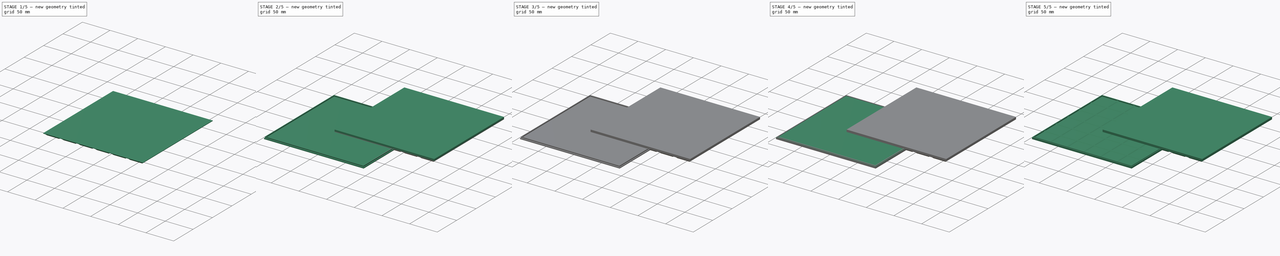
[diagram: build sequence overview — one tinted view per stage of 5, left to right]
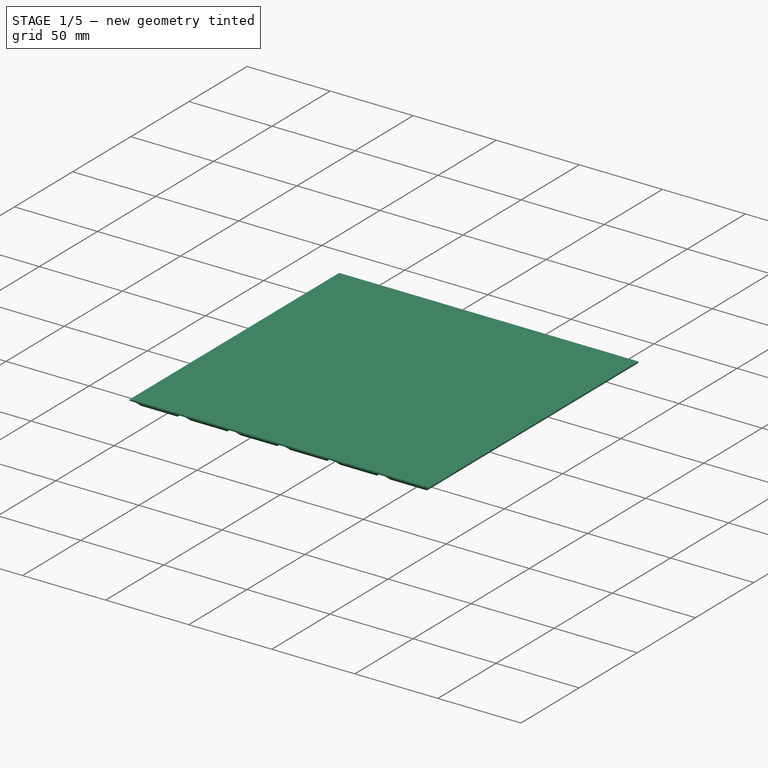
[diagram: stage 1 of 5 — iso view after this stage's code; geometry added in this stage tinted green]
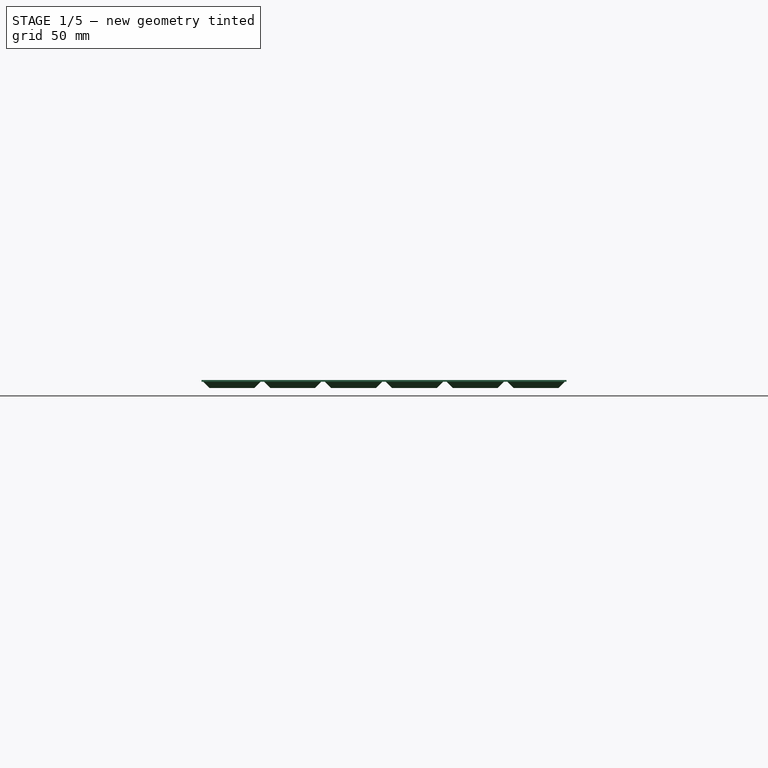
[diagram: stage 1 of 5 — front view after this stage's code; geometry added in this stage tinted green]
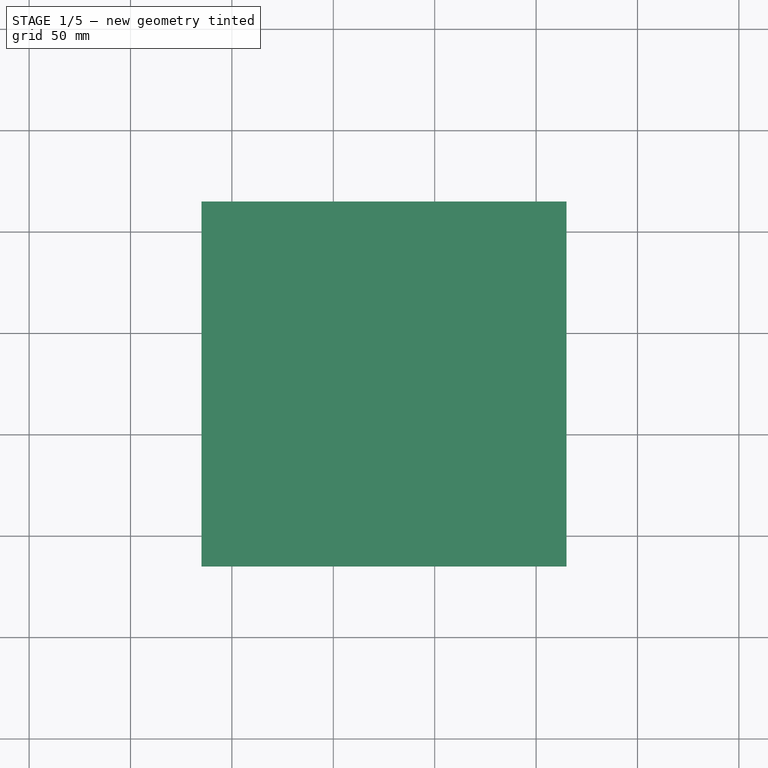
[diagram: stage 1 of 5 — top view after this stage's code; geometry added in this stage tinted green]
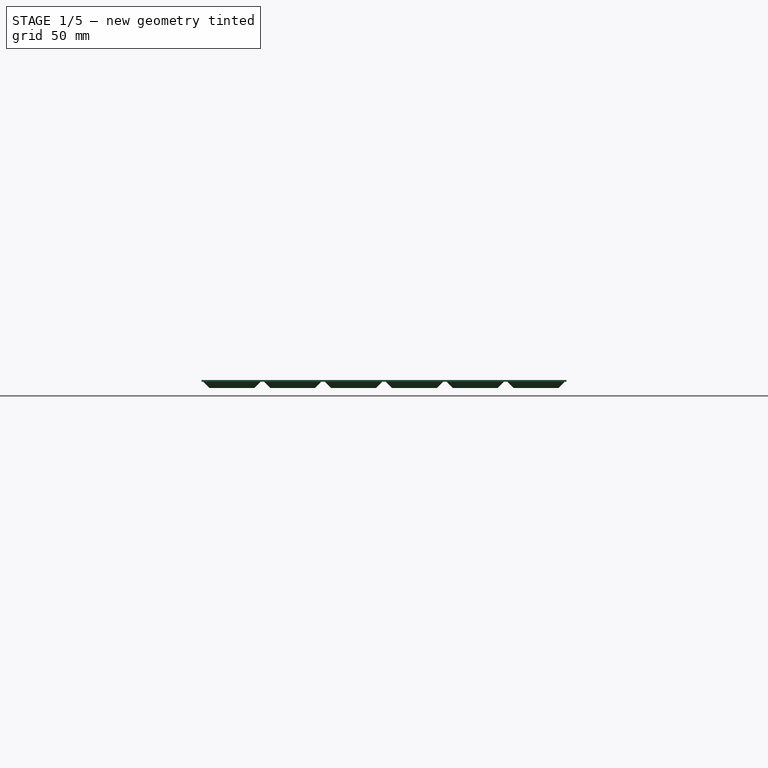
[diagram: stage 1 of 5 — right view after this stage's code; geometry added in this stage tinted green]
FCSTD DOCUMENT  (FreeCAD 0.19R24366 (Git))
Label: retaining base
License: All rights reserved
LicenseURL: http://en.wikipedia.org/wiki/All_rights_reserved
objects: Sketcher::SketchObject×13, PartDesign::Pad×9, PartDesign::Plane×7, PartDesign::LinearPattern×6, PartDesign::Chamfer×6, PartDesign::Pocket×4, PartDesign::Body×4, PartDesign::MultiTransform×3, Spreadsheet::Sheet×1
note: 71 computed .brp shape members not serialized (recipe doc carries the construction recipe); baked Part::Feature solids carry a one-line shape summary decoded from their .brp

FEATURE [PartDesign::Body] Body002  label="Hollow_Box_Top"
  Group = -> [Sketch009,Pad004,DatumPlane006,Sketch010,Pad005,DatumPlane007,Sketch011,Pocket003,Chamfer004]
  Origin = -> Origin002
  Tip = -> Chamfer004
FEATURE [PartDesign::Plane] DatumPlane008  label="Apex_Fill_DatumPlane001"
  AttachmentOffset = pos=(0,0,3.1) rot=(0,0,1;0rad)
  Length = 228
  MapMode = 5
  Placement = pos=(0,0,3.1) rot=(0,0,1;0rad)
  ResizeMode = 0
  Support = -> [XY_Plane003]
  Width = 228
  expr: .AttachmentOffset.Base.z = <<Params>>.BoundaryHeight - <<Params>>.BoundaryNotchDepth + <<Params>>.ApexFillTolerance
FEATURE [Sketcher::SketchObject] Sketch012  label="Apex_FillSketch001"
  FullyConstrained = true
  MapMode = 5
  Placement = pos=(0,0,3.1) rot=(0,0,1;0rad)
  Support = -> [DatumPlane008]
  expr: Constraints[9] = <<Params>>.CellSize
  expr: Constraints[8] = <<Params>>.CellSize
  expr: Constraints[11] = -<<Params>>.CellSize / 2
  expr: Constraints[10] = -<<Params>>.CellSize / 2
  sketch-geometry (4):
    g0: LineSegment StartX=-15 StartY=15 StartZ=0 EndX=15 EndY=15 EndZ=0
    g1: LineSegment StartX=15 StartY=15 StartZ=0 EndX=15 EndY=-15 EndZ=0
    g2: LineSegment StartX=15 StartY=-15 StartZ=0 EndX=-15 EndY=-15 EndZ=0
    g3: LineSegment StartX=-15 StartY=-15 StartZ=0 EndX=-15 EndY=15 EndZ=0
  constraints (12):
    c: Coincident(g0,g1)
    c: Coincident(g1,g2)
    c: Coincident(g2,g3)
    c: Coincident(g3,g0)
    c: Horizontal(g0)
    c: Horizontal(g2)
    c: Vertical(g1)
    c: Vertical(g3)
    c: DistanceY(g3,g3) = 30
    c: DistanceX(g0,g0) = 30
    c: DistanceX(g2) = -15
    c: DistanceY(g2) = -15
FEATURE [Sketcher::SketchObject] Sketch014  label="Box_Walls_Pad_Sketch001"
  FullyConstrained = true
  MapMode = 5
  Placement = pos=(0,0,4) rot=(0,0,1;0rad)
  expr: Constraints[11] = <<Params>>.CellSize * <<Params>>.XRepeats
  expr: Constraints[10] = <<Params>>.CellSize * <<Params>>.YRepeats
  expr: Constraints[9] = -<<Params>>.CellSize / 2
  expr: Constraints[8] = -<<Params>>.CellSize / 2
  sketch-geometry (4):
    g0: LineSegment StartX=-15 StartY=165 StartZ=0 EndX=165 EndY=165 EndZ=0
    g1: LineSegment StartX=165 StartY=165 StartZ=0 EndX=165 EndY=-15 EndZ=0
    g2: LineSegment StartX=165 StartY=-15 StartZ=0 EndX=-15 EndY=-15 EndZ=0
    g3: LineSegment StartX=-15 StartY=-15 StartZ=0 EndX=-15 EndY=165 EndZ=0
  constraints (12):
    c: Coincident(g0,g1)
    c: Coincident(g1,g2)
    c: Coincident(g2,g3)
    c: Coincident(g3,g0)
    c: Horizontal(g0)
    c: Horizontal(g2)
    c: Vertical(g1)
    c: Vertical(g3)
    c: DistanceX(g2) = -15
    c: DistanceY(g2) = -15
    c: DistanceY(g3,g3) = 180
    c: DistanceX(g2,g2) = 180
FEATURE [Sketcher::SketchObject] Sketch016  label="GridSketch001"
  FullyConstrained = true
  MapMode = 5
  Support = -> [XY_Plane003]
  expr: Constraints[9] = <<Params>>.CellSize
  expr: Constraints[10] = <<Params>>.CellSize
  sketch-geometry (4):
    g0: LineSegment StartX=-15 StartY=15 StartZ=0 EndX=15 EndY=15 EndZ=0
    g1: LineSegment StartX=15 StartY=15 StartZ=0 EndX=15 EndY=-15 EndZ=0
    g2: LineSegment StartX=15 StartY=-15 StartZ=0 EndX=-15 EndY=-15 EndZ=0
    g3: LineSegment StartX=-15 StartY=-15 StartZ=0 EndX=-15 EndY=15 EndZ=0
  constraints (11):
    c: Coincident(g0,g1)
    c: Coincident(g1,g2)
    c: Coincident(g2,g3)
    c: Coincident(g3,g0)
    c: Horizontal(g0)
    c: Horizontal(g2)
    c: Vertical(g1)
    c: Vertical(g3)
    c: Symmetric(g0,g2,g-1)
    c: DistanceY(g1,g1) = 30
    c: DistanceX(g0,g0) = 30
FEATURE [PartDesign::LinearPattern] LinearPattern004  label="X_Pattern002"
  Direction = -> Sketch016 [H_Axis]
  Length = 150
  Occurrences = 6
  expr: Occurrences = <<Params>>.XRepeats
  expr: Length = <<Params>>.CellSize * (<<Params>>.XRepeats - 1) == 0 ? 1 : <<Params>>.CellSize * (<<Params>>.XRepeats - 1)
FEATURE [PartDesign::LinearPattern] LinearPattern005  label="Y_Pattern002"
  Direction = -> Sketch016 [V_Axis]
  Length = 150
  Occurrences = 6
  expr: Occurrences = <<Params>>.YRepeats
  expr: Length = <<Params>>.CellSize * (<<Params>>.YRepeats - 1) == 0 ? 1 : <<Params>>.CellSize * (<<Params>>.YRepeats - 1)
FEATURE [PartDesign::Pad] Pad008  label="Cell_Grid001"
  Direction = (1,1,1)
  Length = 4
  Length2 = 100
  Profile = -> Sketch016
  Type = 0
  expr: Length = <<Params>>.BoundaryHeight
FEATURE [PartDesign::Chamfer] Chamfer006  label="Grid_Chamfer001"
  Angle = 45
  Base = -> Pad008 [Edge11,Edge9,Edge6,Edge3]
  BaseFeature = -> Pad008
  ChamferType = 0
  FlipDirection = false
  Size = 3.99
  Size2 = 1
  SupportTransform = false
  expr: Size = <<Params>>.BoundaryHeight - 0.01
FEATURE [PartDesign::Pad] Pad006  label="Apex_Fill001"
  BaseFeature = -> Chamfer006
  Direction = (1,1,1)
  Length = 0.9
  Length2 = 100
  Profile = -> Sketch012
  Type = 0
  expr: Length = <<Params>>.BoundaryNotchDepth - <<Params>>.ApexFillTolerance
FEATURE [PartDesign::MultiTransform] MultiTransform002  label="Grid_MultiTransform001"
  BaseFeature = -> Pad006
  Originals = -> [Pad008,Chamfer006,Pad006]
  Transformations = -> [LinearPattern004,LinearPattern005]
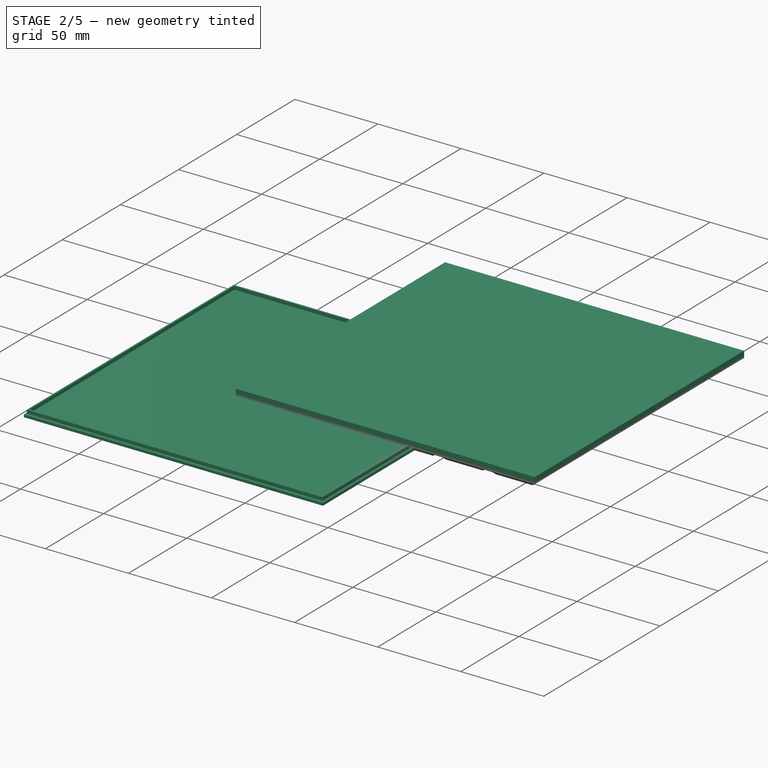
[diagram: stage 2 of 5 — iso view after this stage's code; geometry added in this stage tinted green]
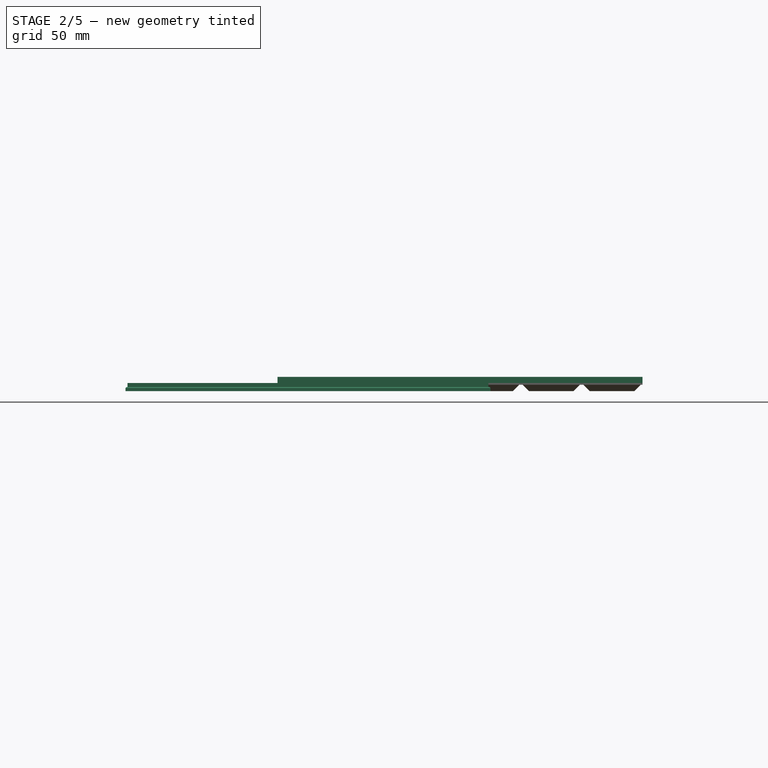
[diagram: stage 2 of 5 — front view after this stage's code; geometry added in this stage tinted green]
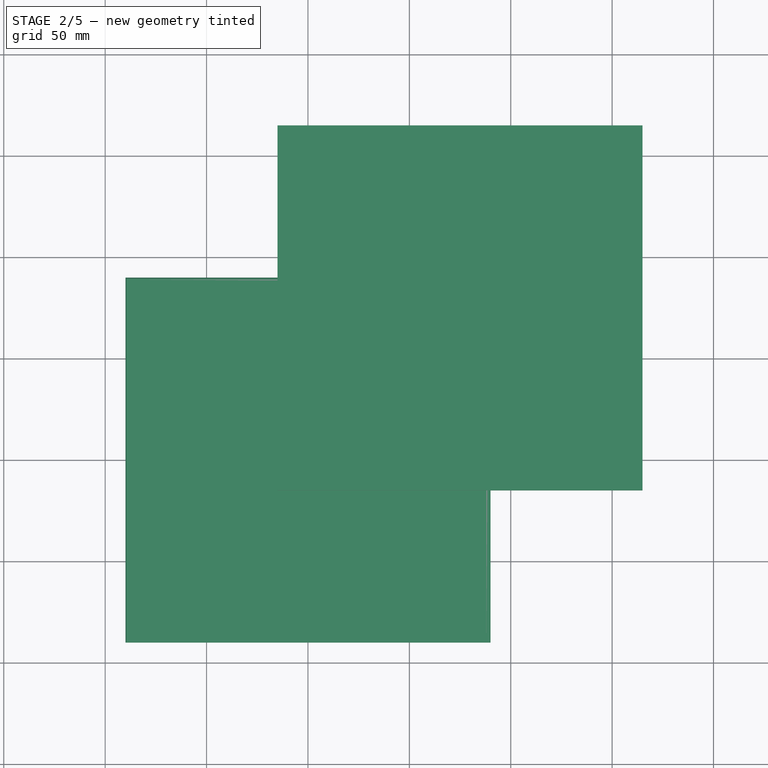
[diagram: stage 2 of 5 — top view after this stage's code; geometry added in this stage tinted green]
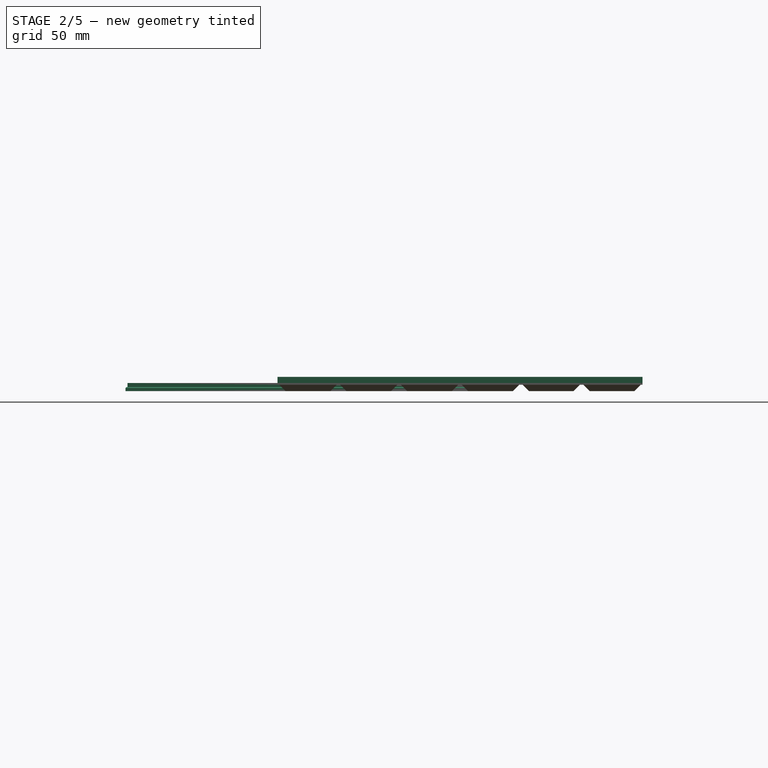
[diagram: stage 2 of 5 — right view after this stage's code; geometry added in this stage tinted green]
FEATURE [PartDesign::Body] Body001  label="Hollow_Box"
  Group = -> [Sketch002,Pad001,Chamfer002,DatumPlane003,Pad002,DatumPlane004,Pocket001,Chamfer003,MultiTransform001,Sketch005,LinearPattern002,LinearPattern003,Sketch006,Sketch007,Pad003,DatumPlane005,Sketch008,Pocket002]
  Origin = -> Origin001
  Tip = -> Pocket002
FEATURE [Sketcher::SketchObject] Sketch009
  FullyConstrained = true
  MapMode = 5
  Support = -> [XY_Plane002]
  expr: Constraints[9] = <<Params>>.CellSize * <<Params>>.YRepeats
  expr: Constraints[10] = <<Params>>.CellSize * <<Params>>.XRepeats
  sketch-geometry (4):
    g0: LineSegment StartX=-90 StartY=90 StartZ=0 EndX=90 EndY=90 EndZ=0
    g1: LineSegment StartX=90 StartY=90 StartZ=0 EndX=90 EndY=-90 EndZ=0
    g2: LineSegment StartX=90 StartY=-90 StartZ=0 EndX=-90 EndY=-90 EndZ=0
    g3: LineSegment StartX=-90 StartY=-90 StartZ=0 EndX=-90 EndY=90 EndZ=0
  constraints (11):
    c: Coincident(g0,g1)
    c: Coincident(g1,g2)
    c: Coincident(g2,g3)
    c: Coincident(g3,g0)
    c: Horizontal(g0)
    c: Horizontal(g2)
    c: Vertical(g1)
    c: Vertical(g3)
    c: Symmetric(g0,g1,g-1)
    c: DistanceY(g3,g3) = 180
    c: DistanceX(g0,g0) = 180
FEATURE [PartDesign::Pad] Pad004  label="Box_Top"
  Direction = (1,1,1)
  Length = 2
  Length2 = 100
  Profile = -> Sketch009
  Type = 0
  expr: Length = <<Params>>.BoxTopThickness
FEATURE [PartDesign::Plane] DatumPlane006  label="Tab_DatumPlane"
  AttachmentOffset = pos=(0,0,2) rot=(0,0,1;0rad)
  Length = 216
  MapMode = 2
  Placement = pos=(0,0,2) rot=(0,0,1;0rad)
  ResizeMode = 0
  Support = -> [Pad004]
  Width = 216
  expr: .AttachmentOffset.Base.z = <<Params>>.BoxTopThickness
FEATURE [Sketcher::SketchObject] Sketch010  label="Tab_Sketch"
  FullyConstrained = true
  MapMode = 5
  Placement = pos=(0,0,2) rot=(0,0,1;0rad)
  Support = -> [DatumPlane006]
  expr: Constraints[9] = <<Params>>.CellSize * <<Params>>.YRepeats - 2 * <<Params>>.BoxThickness - 2 * <<Params>>.BoxTabTolerance
  expr: Constraints[10] = <<Params>>.CellSize * <<Params>>.XRepeats - 2 * <<Params>>.BoxThickness - 2 * <<Params>>.BoxTabTolerance
  sketch-geometry (4):
    g0: LineSegment StartX=-89 StartY=89 StartZ=0 EndX=89 EndY=89 EndZ=0
    g1: LineSegment StartX=89 StartY=89 StartZ=0 EndX=89 EndY=-89 EndZ=0
    g2: LineSegment StartX=89 StartY=-89 StartZ=0 EndX=-89 EndY=-89 EndZ=0
    g3: LineSegment StartX=-89 StartY=-89 StartZ=0 EndX=-89 EndY=89 EndZ=0
  constraints (11):
    c: Coincident(g0,g1)
    c: Coincident(g1,g2)
    c: Coincident(g2,g3)
    c: Coincident(g3,g0)
    c: Horizontal(g0)
    c: Horizontal(g2)
    c: Vertical(g1)
    c: Vertical(g3)
    c: Symmetric(g0,g2,g-1)
    c: DistanceY(g3,g3) = 178
    c: DistanceX(g2,g2) = 178
FEATURE [PartDesign::Pad] Pad005  label="Box_Tab"
  BaseFeature = -> Pad004
  Direction = (1,1,1)
  Length = 2
  Length2 = 100
  Profile = -> Sketch010
  Type = 0
  expr: Length = <<Params>>.BoxTabLength
FEATURE [PartDesign::Plane] DatumPlane007  label="Tab_Pocket_DatumPlane"
  AttachmentOffset = pos=(0,0,4) rot=(0,0,1;0rad)
  Length = 216
  MapMode = 2
  Placement = pos=(0,0,4) rot=(0,0,1;0rad)
  ResizeMode = 0
  Support = -> [Pad005]
  Width = 216
  expr: .AttachmentOffset.Base.z = <<Params>>.BoxTopThickness + <<Params>>.BoxTabLength
FEATURE [Sketcher::SketchObject] Sketch011  label="Tab_Pocket_Sketch"
  FullyConstrained = true
  MapMode = 5
  Placement = pos=(0,0,4) rot=(0,0,1;0rad)
  Support = -> [DatumPlane007]
  expr: Constraints[9] = <<Params>>.CellSize * <<Params>>.YRepeats - 2 * (<<Params>>.BoxThickness + <<Params>>.BoxTabThickness) - 2 * <<Params>>.BoxTabTolerance
  expr: Constraints[10] = <<Params>>.CellSize * <<Params>>.XRepeats - 2 * (<<Params>>.BoxThickness + <<Params>>.BoxTabThickness) - 2 * <<Params>>.BoxTabTolerance
  sketch-geometry (4):
    g0: LineSegment StartX=-88 StartY=88 StartZ=0 EndX=88 EndY=88 EndZ=0
    g1: LineSegment StartX=88 StartY=88 StartZ=0 EndX=88 EndY=-88 EndZ=0
    g2: LineSegment StartX=88 StartY=-88 StartZ=0 EndX=-88 EndY=-88 EndZ=0
    g3: LineSegment StartX=-88 StartY=-88 StartZ=0 EndX=-88 EndY=88 EndZ=0
  constraints (11):
    c: Coincident(g0,g1)
    c: Coincident(g1,g2)
    c: Coincident(g2,g3)
    c: Coincident(g3,g0)
    c: Horizontal(g0)
    c: Horizontal(g2)
    c: Vertical(g1)
    c: Vertical(g3)
    c: Symmetric(g0,g2,g-1)
    c: DistanceY(g3,g3) = 176
    c: DistanceX(g2,g2) = 176
FEATURE [PartDesign::Pocket] Pocket003  label="Tab_Pocket"
  BaseFeature = -> Pad005
  Length = 2
  Length2 = 100
  Profile = -> Sketch011
  Type = 0
  expr: Length = <<Params>>.BoxTabLength
FEATURE [PartDesign::Chamfer] Chamfer004  label="Opener_Chamfer"
  Angle = 45
  Base = -> Pocket003 [Edge12,Edge4,Edge10,Edge7]
  BaseFeature = -> Pocket003
  ChamferType = 0
  FlipDirection = false
  Size = 0.5
  Size2 = 1
  SupportTransform = false
  expr: Size = <<Params>>.BoxTopChamfer
FEATURE [PartDesign::Pad] Pad007  label="Box_Walls001"
  BaseFeature = -> MultiTransform002
  Direction = (1,1,1)
  Length = 3
  Length2 = 100
  Profile = -> Sketch014
  Type = 0
  expr: Length = <<Params>>.BoxHeight - <<Params>>.BoundaryHeight
FEATURE [PartDesign::Body] Body003  label="Solid_Box"
  Group = -> [Sketch016,Pad008,Chamfer006,DatumPlane008,Pad006,MultiTransform002,Sketch012,LinearPattern004,LinearPattern005,Sketch014,Pad007]
  Origin = -> Origin003
  Tip = -> Pad007
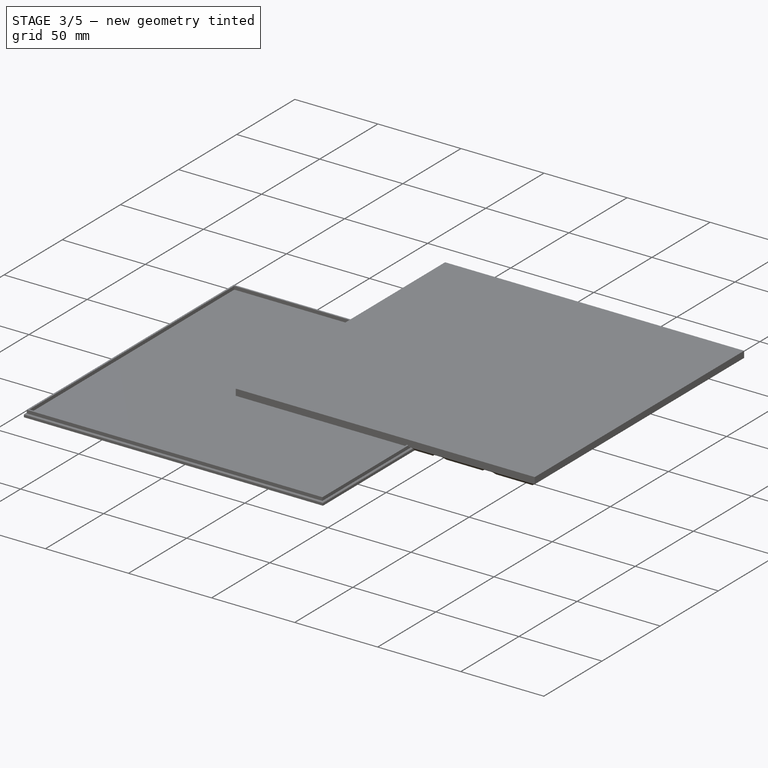
[diagram: stage 3 of 5 — iso view after this stage's code; geometry added in this stage tinted green]
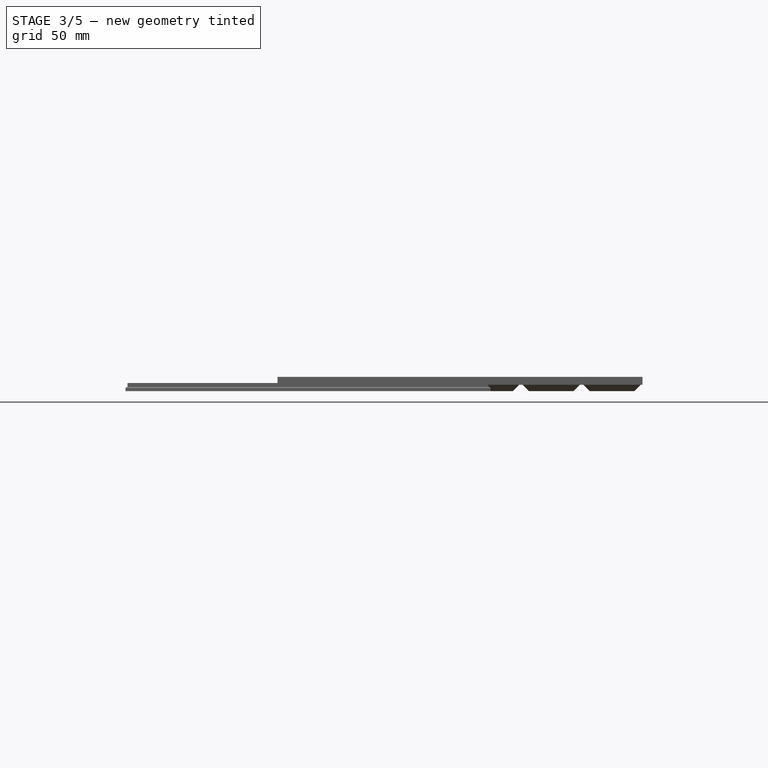
[diagram: stage 3 of 5 — front view after this stage's code; geometry added in this stage tinted green]
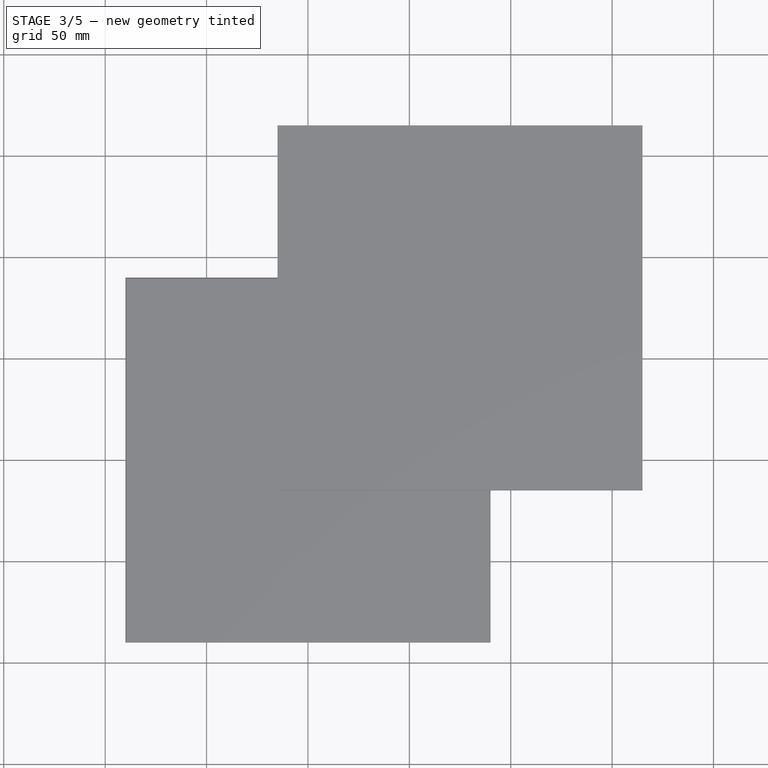
[diagram: stage 3 of 5 — top view after this stage's code; geometry added in this stage tinted green]
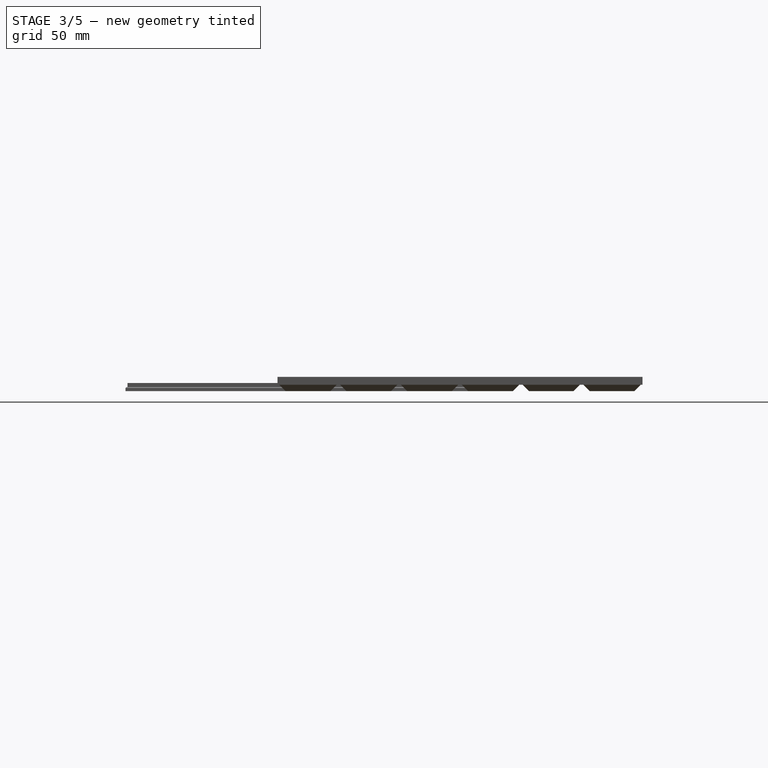
[diagram: stage 3 of 5 — right view after this stage's code; geometry added in this stage tinted green]
FEATURE [PartDesign::Body] Body  label="Base"
  Group = -> [Sketch,Pad,Chamfer001,DatumPlane,Sketch001,Pocket,Chamfer,MultiTransform,LinearPattern,LinearPattern001]
  Origin = -> Origin
  Tip = -> MultiTransform
FEATURE [Sketcher::SketchObject] Sketch002  label="GridSketch"
  FullyConstrained = true
  MapMode = 5
  Support = -> [XY_Plane001]
  expr: Constraints[10] = <<Params>>.CellSize
  expr: Constraints[9] = <<Params>>.CellSize
  sketch-geometry (4):
    g0: LineSegment StartX=-15 StartY=15 StartZ=0 EndX=15 EndY=15 EndZ=0
    g1: LineSegment StartX=15 StartY=15 StartZ=0 EndX=15 EndY=-15 EndZ=0
    g2: LineSegment StartX=15 StartY=-15 StartZ=0 EndX=-15 EndY=-15 EndZ=0
    g3: LineSegment StartX=-15 StartY=-15 StartZ=0 EndX=-15 EndY=15 EndZ=0
  constraints (11):
    c: Coincident(g0,g1)
    c: Coincident(g1,g2)
    c: Coincident(g2,g3)
    c: Coincident(g3,g0)
    c: Horizontal(g0)
    c: Horizontal(g2)
    c: Vertical(g1)
    c: Vertical(g3)
    c: Symmetric(g0,g2,g-1)
    c: DistanceY(g1,g1) = 30
    c: DistanceX(g0,g0) = 30
FEATURE [PartDesign::Pad] Pad001  label="Cell_Grid"
  Direction = (1,1,1)
  Length = 4
  Length2 = 100
  Profile = -> Sketch002
  Type = 0
  expr: Length = <<Params>>.BoundaryHeight
FEATURE [PartDesign::Chamfer] Chamfer002  label="Grid_Chamfer"
  Angle = 45
  Base = -> Pad001 [Edge11,Edge9,Edge6,Edge3]
  BaseFeature = -> Pad001
  ChamferType = 0
  FlipDirection = false
  Size = 3.99
  Size2 = 1
  SupportTransform = false
  expr: Size = <<Params>>.BoundaryHeight - 0.01
FEATURE [PartDesign::LinearPattern] LinearPattern002  label="X_Pattern"
  Direction = -> Sketch002 [H_Axis]
  Length = 150
  Occurrences = 6
  expr: Length = <<Params>>.CellSize * (<<Params>>.XRepeats - 1) == 0 ? 1 : <<Params>>.CellSize * (<<Params>>.XRepeats - 1)
  expr: Occurrences = <<Params>>.XRepeats
FEATURE [PartDesign::LinearPattern] LinearPattern003  label="Y_Pattern"
  Direction = -> Sketch002 [V_Axis]
  Length = 150
  Occurrences = 6
  expr: Length = <<Params>>.CellSize * (<<Params>>.YRepeats - 1) == 0 ? 1 : <<Params>>.CellSize * (<<Params>>.YRepeats - 1)
  expr: Occurrences = <<Params>>.YRepeats
FEATURE [PartDesign::Plane] DatumPlane003  label="Apex_Fill_DatumPlane"
  AttachmentOffset = pos=(0,0,3.1) rot=(0,0,1;0rad)
  Length = 228
  MapMode = 5
  Placement = pos=(0,0,3.1) rot=(0,0,1;0rad)
  ResizeMode = 0
  Support = -> [XY_Plane001]
  Width = 228
  expr: .AttachmentOffset.Base.z = <<Params>>.BoundaryHeight - <<Params>>.BoundaryNotchDepth + <<Params>>.ApexFillTolerance
FEATURE [Sketcher::SketchObject] Sketch005  label="Apex_FillSketch"
  FullyConstrained = true
  MapMode = 5
  Placement = pos=(0,0,3.1) rot=(0,0,1;0rad)
  Support = -> [DatumPlane003]
  expr: Constraints[10] = -<<Params>>.CellSize / 2
  expr: Constraints[11] = -<<Params>>.CellSize / 2
  expr: Constraints[8] = <<Params>>.CellSize
  expr: Constraints[9] = <<Params>>.CellSize
  sketch-geometry (4):
    g0: LineSegment StartX=-15 StartY=15 StartZ=0 EndX=15 EndY=15 EndZ=0
    g1: LineSegment StartX=15 StartY=15 StartZ=0 EndX=15 EndY=-15 EndZ=0
    g2: LineSegment StartX=15 StartY=-15 StartZ=0 EndX=-15 EndY=-15 EndZ=0
    g3: LineSegment StartX=-15 StartY=-15 StartZ=0 EndX=-15 EndY=15 EndZ=0
  constraints (12):
    c: Coincident(g0,g1)
    c: Coincident(g1,g2)
    c: Coincident(g2,g3)
    c: Coincident(g3,g0)
    c: Horizontal(g0)
    c: Horizontal(g2)
    c: Vertical(g1)
    c: Vertical(g3)
    c: DistanceY(g3,g3) = 30
    c: DistanceX(g0,g0) = 30
    c: DistanceX(g2) = -15
    c: DistanceY(g2) = -15
FEATURE [PartDesign::Pad] Pad002  label="Apex_Fill"
  BaseFeature = -> Chamfer002
  Direction = (1,1,1)
  Length = 0.9
  Length2 = 100
  Profile = -> Sketch005
  Type = 0
  expr: Length = <<Params>>.BoundaryNotchDepth - <<Params>>.ApexFillTolerance
FEATURE [PartDesign::Plane] DatumPlane004  label="Inner_Pocket_DatumPlane"
  AttachmentOffset = pos=(0,0,4) rot=(0,0,1;0rad)
  Length = 228
  MapMode = 2
  Placement = pos=(0,0,4) rot=(0,0,1;0rad)
  ResizeMode = 0
  Support = -> [Pad002]
  Width = 228
  expr: .AttachmentOffset.Base.z = <<Params>>.BoundaryHeight
FEATURE [Sketcher::SketchObject] Sketch006
  FullyConstrained = true
  MapMode = 5
  Placement = pos=(0,0,4) rot=(0,0,1;0rad)
  Support = -> [DatumPlane004]
  expr: Constraints[9] = <<Params>>.CellSize - 2 * <<Params>>.BoundaryHeight
  expr: Constraints[10] = <<Params>>.CellSize - 2 * <<Params>>.BoundaryHeight
  sketch-geometry (4):
    g0: LineSegment StartX=-11 StartY=11 StartZ=0 EndX=11 EndY=11 EndZ=0
    g1: LineSegment StartX=11 StartY=11 StartZ=0 EndX=11 EndY=-11 EndZ=0
    g2: LineSegment StartX=11 StartY=-11 StartZ=0 EndX=-11 EndY=-11 EndZ=0
    g3: LineSegment StartX=-11 StartY=-11 StartZ=0 EndX=-11 EndY=11 EndZ=0
  constraints (11):
    c: Coincident(g0,g1)
    c: Coincident(g1,g2)
    c: Coincident(g2,g3)
    c: Coincident(g3,g0)
    c: Horizontal(g0)
    c: Horizontal(g2)
    c: Vertical(g1)
    c: Vertical(g3)
    c: Symmetric(g0,g2,g-1)
    c: DistanceY(g3,g3) = 22
    c: DistanceX(g0,g0) = 22
FEATURE [PartDesign::Pocket] Pocket001  label="Inner_Pocket"
  BaseFeature = -> Pad002
  Length = 3
  Length2 = 100
  Profile = -> Sketch006
  Type = 0
  expr: Length = <<Params>>.BoundaryHeight - <<Params>>.BoxThickness
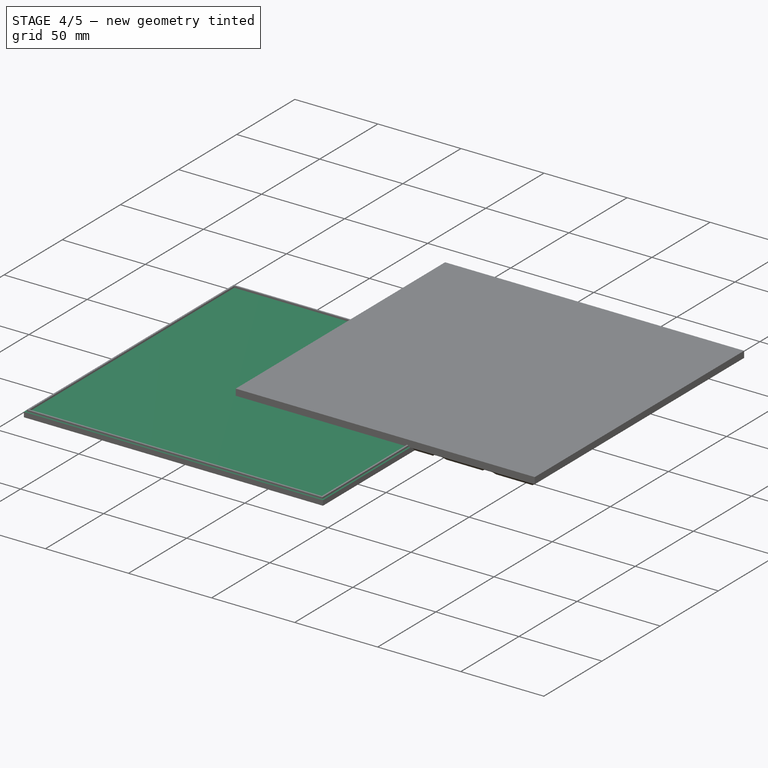
[diagram: stage 4 of 5 — iso view after this stage's code; geometry added in this stage tinted green]
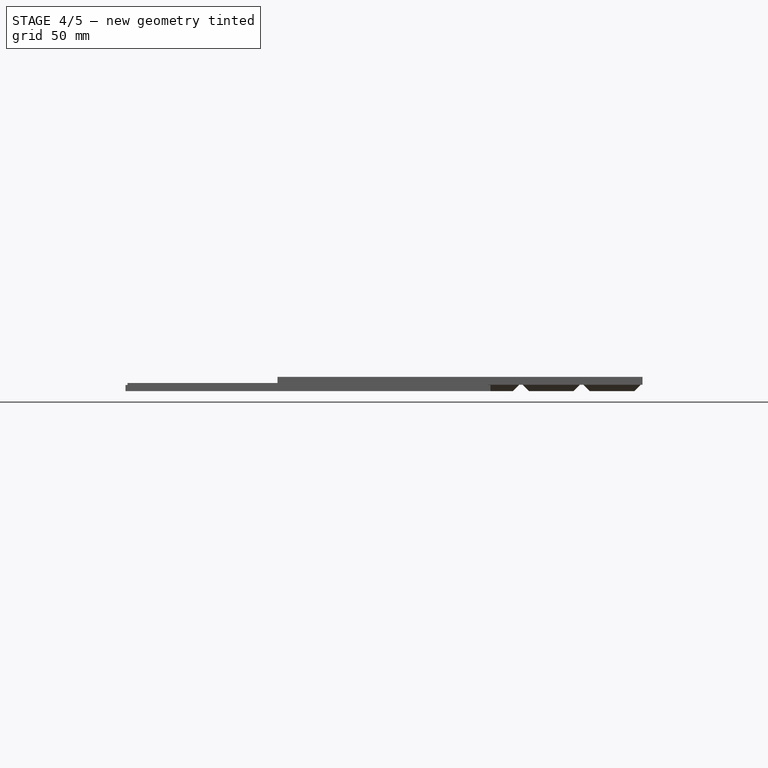
[diagram: stage 4 of 5 — front view after this stage's code; geometry added in this stage tinted green]
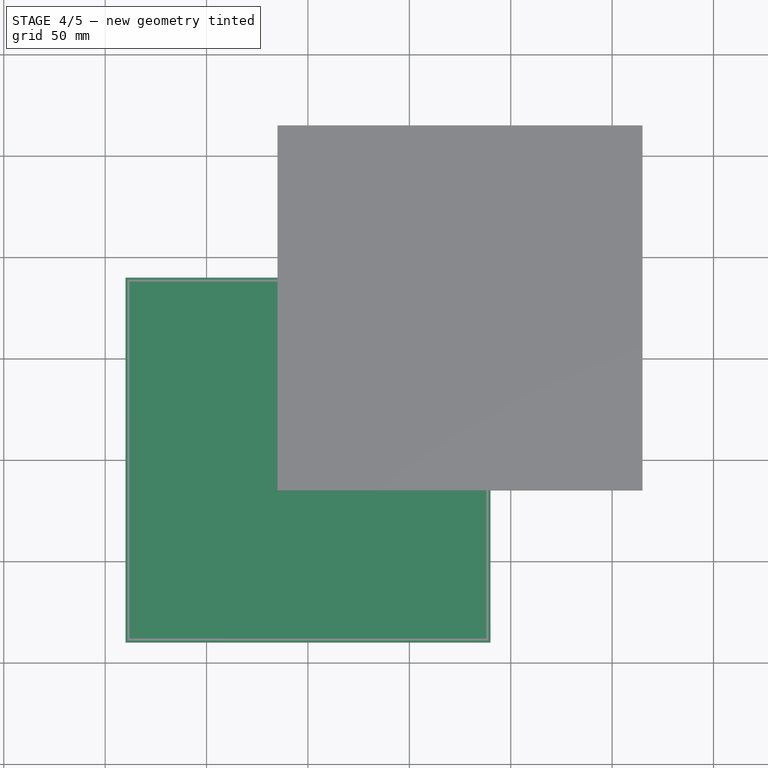
[diagram: stage 4 of 5 — top view after this stage's code; geometry added in this stage tinted green]
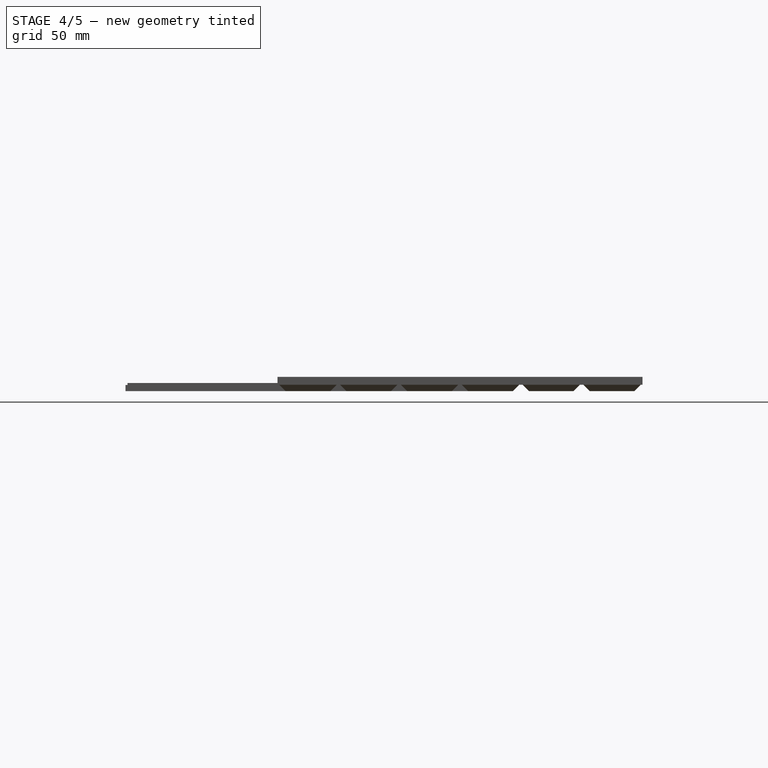
[diagram: stage 4 of 5 — right view after this stage's code; geometry added in this stage tinted green]
FEATURE [Spreadsheet::Sheet] Spreadsheet  label="Params"
  cells = A1=BASE PARAMS; A2=Cell Size; B2(CellSize)=30; C2=30mm stock; A3=Boundary Height; B3(BoundaryHeight)=4; C3=4mm stock; A4=Boundary Angle; B4(BoundaryAngle)=45; D4=currently unused; A5=Boundary Notch Depth; B5(BoundaryNotchDepth)=1; C5=1mm stock; D5=must be non-zero; A6=Boundary Notch Width; B6(BoundaryNotchWidth)=1; C6=1mm stock; D6=must be non-zero; A7=X Repeats; B7(XRepeats)=6; C7=1 stock; A8=Y Repeats; B8(YRepeats)=6; C8=1 stock; A9=Outer Chamfer; B9(OuterChamfer)=0.3; C9=0.3mm stock; D9=for mitigating elephant footing for better fitment; A11=BOX PARAMS; A12=Box Height; B12(BoxHeight)=7; C12=depends on box; A13=Box Thickness; B13(BoxThickness)=1; C13=1mm stock; A14=Apex Fill Tolerance; B14(ApexFillTolerance)=0.1; C14=0.1mm stock; A16=BOX TOP PARAMS; A17=Box Top Thickness; B17(BoxTopThickness)=2; A18=Box Tab Thickness; B18(BoxTabThickness)=1; A19=Box Tab Length; B19(BoxTabLength)=2; A20=Box Tab Tolerance; B20(BoxTabTolerance)=0; A21=Box Top Chamfer; B21(BoxTopChamfer)=0.5
FEATURE [Sketcher::SketchObject] Sketch  label="CellSketch"
  FullyConstrained = true
  MapMode = 5
  Support = -> [XY_Plane]
  expr: Constraints[9] = <<Params>>.CellSize * <<Params>>.XRepeats
  expr: Constraints[10] = <<Params>>.CellSize * <<Params>>.YRepeats
  sketch-geometry (4):
    g0: LineSegment StartX=-90 StartY=90 StartZ=0 EndX=90 EndY=90 EndZ=0
    g1: LineSegment StartX=90 StartY=90 StartZ=0 EndX=90 EndY=-90 EndZ=0
    g2: LineSegment StartX=90 StartY=-90 StartZ=0 EndX=-90 EndY=-90 EndZ=0
    g3: LineSegment StartX=-90 StartY=-90 StartZ=0 EndX=-90 EndY=90 EndZ=0
  constraints (11):
    c: Coincident(g0,g1)
    c: Coincident(g1,g2)
    c: Coincident(g2,g3)
    c: Coincident(g3,g0)
    c: Horizontal(g0)
    c: Horizontal(g2)
    c: Vertical(g1)
    c: Vertical(g3)
    c: Symmetric(g0,g2,g-1)
    c: Distance(g0) = 180
    c: Distance(g1) = 180
FEATURE [PartDesign::Pad] Pad  label="Cell"
  Direction = (1,1,1)
  Length = 3
  Length2 = 100
  Profile = -> Sketch
  Type = 0
  expr: Length = <<Params>>.BoundaryHeight - <<Params>>.BoundaryNotchDepth
FEATURE [PartDesign::Chamfer] Chamfer003  label="Inner_Pocket_Chamfer"
  Angle = 45
  Base = -> Pocket001 [Edge16,Edge15,Edge14,Edge13]
  BaseFeature = -> Pocket001
  ChamferType = 0
  FlipDirection = false
  Size = 2.99
  Size2 = 1
  SupportTransform = false
  expr: Size = <<Params>>.BoundaryHeight - <<Params>>.BoxThickness - 0.01
FEATURE [PartDesign::MultiTransform] MultiTransform001  label="Grid_MultiTransform"
  BaseFeature = -> Chamfer003
  Originals = -> [Pad001,Chamfer002,Pad002,Pocket001,Chamfer003]
  Transformations = -> [LinearPattern002,LinearPattern003]
FEATURE [Sketcher::SketchObject] Sketch007  label="Box_Walls_Pad_Sketch"
  FullyConstrained = true
  MapMode = 5
  Placement = pos=(0,0,4) rot=(0,0,1;0rad)
  Support = -> [DatumPlane004]
  expr: Constraints[8] = -<<Params>>.CellSize / 2
  expr: Constraints[9] = -<<Params>>.CellSize / 2
  expr: Constraints[10] = <<Params>>.CellSize * <<Params>>.YRepeats
  expr: Constraints[11] = <<Params>>.CellSize * <<Params>>.XRepeats
  sketch-geometry (4):
    g0: LineSegment StartX=-15 StartY=165 StartZ=0 EndX=165 EndY=165 EndZ=0
    g1: LineSegment StartX=165 StartY=165 StartZ=0 EndX=165 EndY=-15 EndZ=0
    g2: LineSegment StartX=165 StartY=-15 StartZ=0 EndX=-15 EndY=-15 EndZ=0
    g3: LineSegment StartX=-15 StartY=-15 StartZ=0 EndX=-15 EndY=165 EndZ=0
  constraints (12):
    c: Coincident(g0,g1)
    c: Coincident(g1,g2)
    c: Coincident(g2,g3)
    c: Coincident(g3,g0)
    c: Horizontal(g0)
    c: Horizontal(g2)
    c: Vertical(g1)
    c: Vertical(g3)
    c: DistanceX(g2) = -15
    c: DistanceY(g2) = -15
    c: DistanceY(g3,g3) = 180
    c: DistanceX(g2,g2) = 180
FEATURE [PartDesign::Pad] Pad003  label="Box_Walls"
  BaseFeature = -> MultiTransform001
  Direction = (1,1,1)
  Length = 3
  Length2 = 100
  Profile = -> Sketch007
  Type = 0
  expr: Length = <<Params>>.BoxHeight - <<Params>>.BoundaryHeight
FEATURE [PartDesign::Plane] DatumPlane005  label="Outer_Pocket_DatumPlane"
  AttachmentOffset = pos=(0,0,7) rot=(0,0,1;0rad)
  Length = 228
  MapMode = 2
  Placement = pos=(0,0,7) rot=(0,0,1;0rad)
  ResizeMode = 0
  Support = -> [Pad003]
  Width = 228
  expr: .AttachmentOffset.Base.z = <<Params>>.BoxHeight
FEATURE [Sketcher::SketchObject] Sketch008
  FullyConstrained = true
  MapMode = 5
  Placement = pos=(0,0,7) rot=(0,0,1;0rad)
  Support = -> [DatumPlane005]
  expr: Constraints[8] = -<<Params>>.CellSize / 2 + <<Params>>.BoxThickness
  expr: Constraints[9] = -<<Params>>.CellSize / 2 + <<Params>>.BoxThickness
  expr: Constraints[10] = <<Params>>.CellSize * <<Params>>.YRepeats - 2 * <<Params>>.BoxThickness
  expr: Constraints[11] = <<Params>>.CellSize * <<Params>>.XRepeats - 2 * <<Params>>.BoxThickness
  sketch-geometry (4):
    g0: LineSegment StartX=-14 StartY=164 StartZ=0 EndX=164 EndY=164 EndZ=0
    g1: LineSegment StartX=164 StartY=164 StartZ=0 EndX=164 EndY=-14 EndZ=0
    g2: LineSegment StartX=164 StartY=-14 StartZ=0 EndX=-14 EndY=-14 EndZ=0
    g3: LineSegment StartX=-14 StartY=-14 StartZ=0 EndX=-14 EndY=164 EndZ=0
  constraints (12):
    c: Coincident(g0,g1)
    c: Coincident(g1,g2)
    c: Coincident(g2,g3)
    c: Coincident(g3,g0)
    c: Horizontal(g0)
    c: Horizontal(g2)
    c: Vertical(g1)
    c: Vertical(g3)
    c: DistanceX(g2) = -14
    c: DistanceY(g2) = -14
    c: DistanceY(g3,g3) = 178
    c: DistanceX(g2,g2) = 178
FEATURE [PartDesign::Pocket] Pocket002  label="Outer_Pocket"
  BaseFeature = -> Pad003
  Length = 3
  Length2 = 100
  Profile = -> Sketch008
  Type = 0
  expr: Length = <<Params>>.BoxHeight - <<Params>>.BoundaryHeight
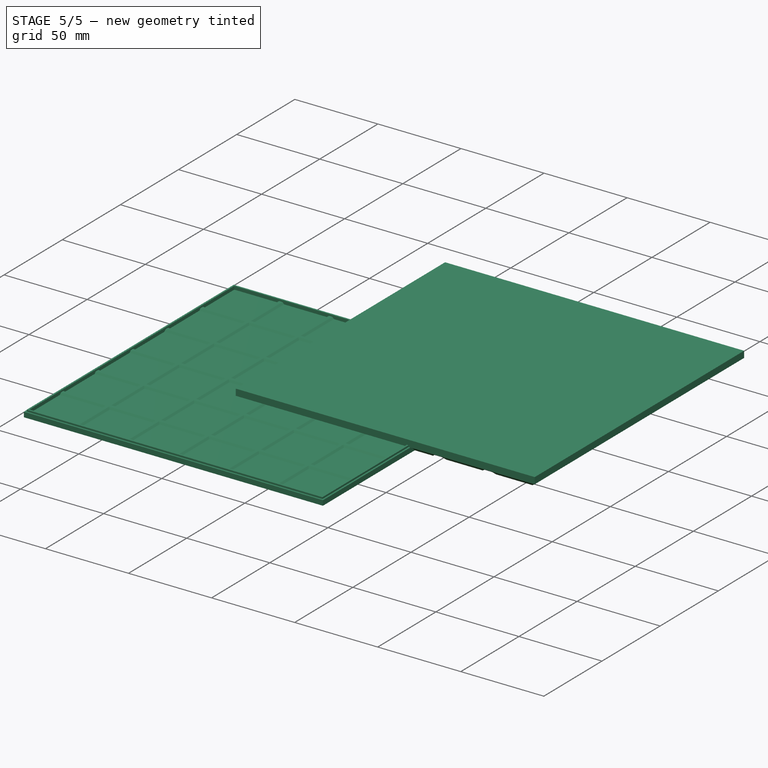
[diagram: stage 5 of 5 — iso view after this stage's code; geometry added in this stage tinted green]
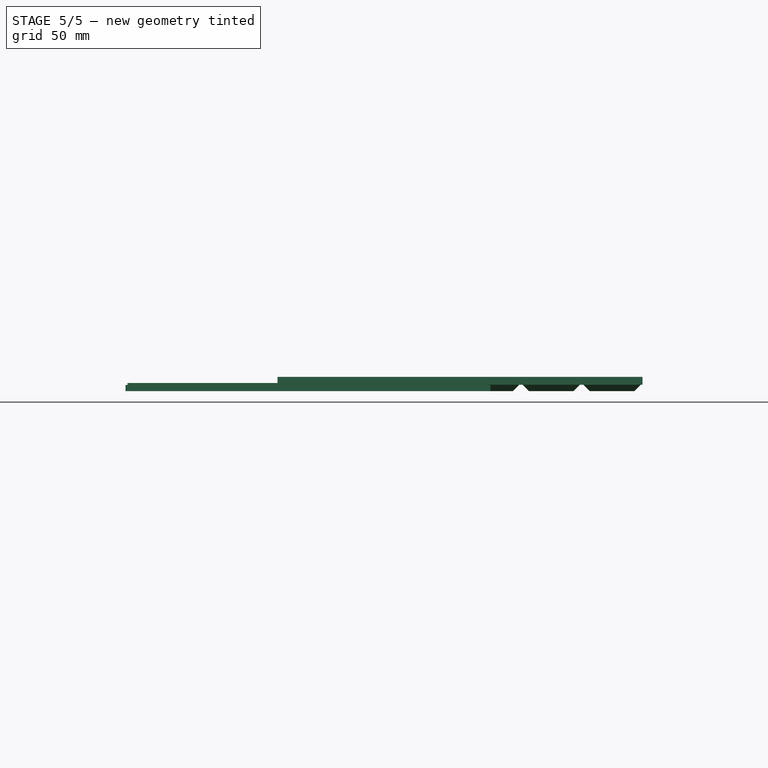
[diagram: stage 5 of 5 — front view after this stage's code; geometry added in this stage tinted green]
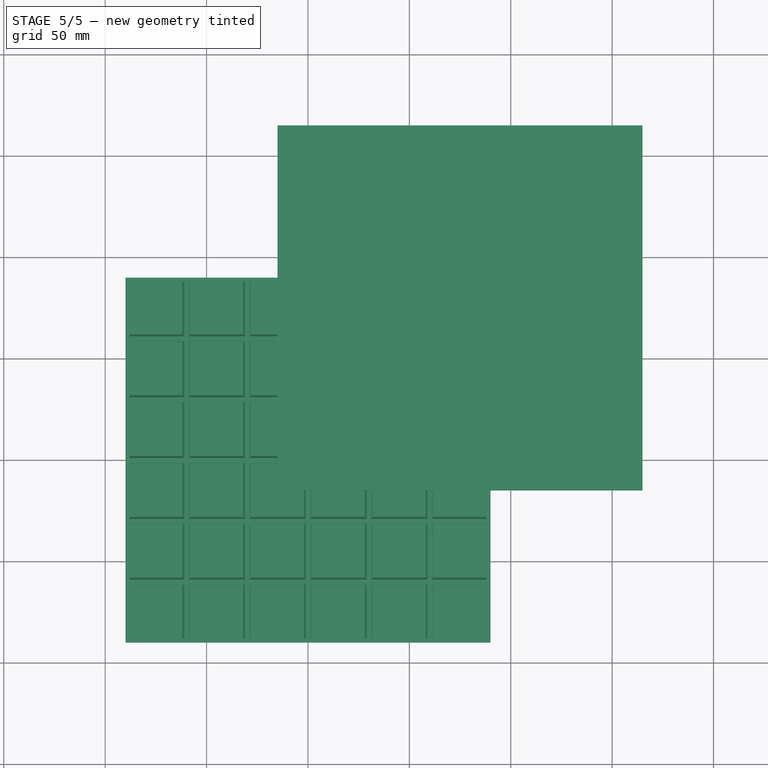
[diagram: stage 5 of 5 — top view after this stage's code; geometry added in this stage tinted green]
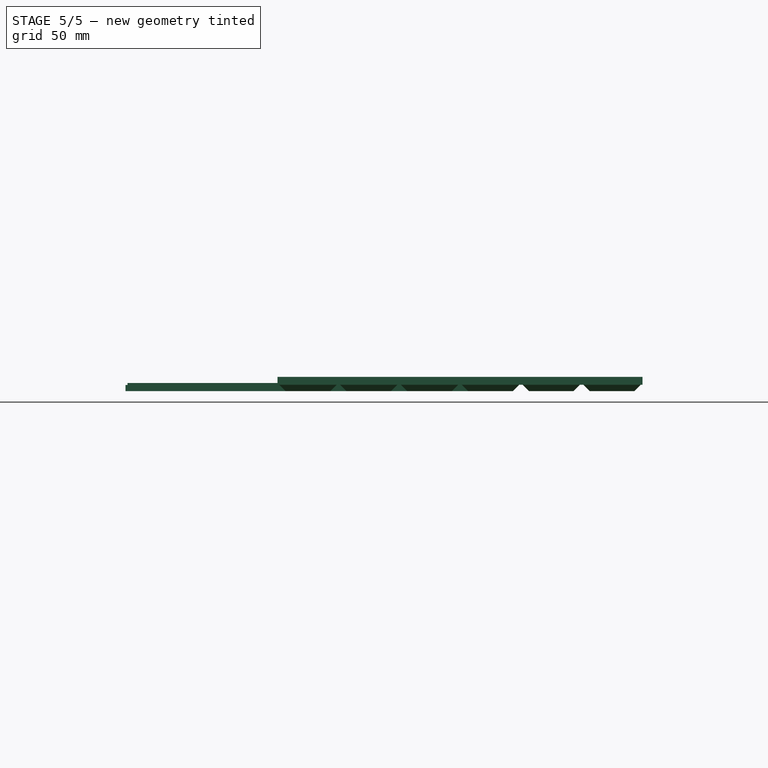
[diagram: stage 5 of 5 — right view after this stage's code; geometry added in this stage tinted green]
FEATURE [PartDesign::Plane] DatumPlane
  AttachmentOffset = pos=(-75,-75,3) rot=(0,0,1;0rad)
  Length = 216
  MapMode = 5
  Placement = pos=(-75,-75,3) rot=(0,0,1;0rad)
  ResizeMode = 0
  Support = -> [XY_Plane]
  Width = 216
  expr: .AttachmentOffset.Base.z = <<Params>>.BoundaryHeight - <<Params>>.BoundaryNotchDepth
  expr: .AttachmentOffset.Base.x = -1 * (<<Params>>.XRepeats - 1) * <<Params>>.CellSize / 2
  expr: .AttachmentOffset.Base.y = -1 * (<<Params>>.YRepeats - 1) * <<Params>>.CellSize / 2
FEATURE [Sketcher::SketchObject] Sketch001  label="PocketSketch"
  FullyConstrained = true
  MapMode = 5
  Placement = pos=(-75,-75,3) rot=(0,0,1;0rad)
  Support = -> [DatumPlane]
  expr: Constraints[9] = <<Params>>.CellSize - 2 * <<Params>>.BoundaryHeight + 2 * <<Params>>.BoundaryNotchWidth
  expr: Constraints[10] = <<Params>>.CellSize - 2 * <<Params>>.BoundaryHeight + 2 * <<Params>>.BoundaryNotchWidth
  sketch-geometry (4):
    g0: LineSegment StartX=12 StartY=-12 StartZ=0 EndX=-12 EndY=-12 EndZ=0
    g1: LineSegment StartX=-12 StartY=-12 StartZ=0 EndX=-12 EndY=12 EndZ=0
    g2: LineSegment StartX=-12 StartY=12 StartZ=0 EndX=12 EndY=12 EndZ=0
    g3: LineSegment StartX=12 StartY=12 StartZ=0 EndX=12 EndY=-12 EndZ=0
  constraints (11):
    c: Coincident(g0,g1)
    c: Coincident(g1,g2)
    c: Coincident(g2,g3)
    c: Coincident(g3,g0)
    c: Horizontal(g0)
    c: Horizontal(g2)
    c: Vertical(g1)
    c: Vertical(g3)
    c: Symmetric(g2,g0,g-1)
    c: Distance(g2) = 24
    c: Distance(g3) = 24
FEATURE [PartDesign::LinearPattern] LinearPattern  label="X_Pattern001"
  Direction = -> Sketch001 [H_Axis]
  Length = 150
  Occurrences = 6
  expr: Length = <<Params>>.CellSize * (<<Params>>.XRepeats - 1) == 0 ? 1 : <<Params>>.CellSize * (<<Params>>.XRepeats - 1)
  expr: Occurrences = <<Params>>.XRepeats
FEATURE [PartDesign::LinearPattern] LinearPattern001  label="Y_Pattern001"
  Direction = -> Sketch001 [V_Axis]
  Length = 150
  Occurrences = 6
  expr: Length = <<Params>>.CellSize * (<<Params>>.YRepeats - 1) == 0 ? 1 : <<Params>>.CellSize * (<<Params>>.YRepeats - 1)
  expr: Occurrences = <<Params>>.YRepeats
FEATURE [PartDesign::Chamfer] Chamfer001  label="Outer_Chamfer"
  Angle = 45
  Base = -> Pad [Edge6,Edge3,Edge11,Edge9]
  BaseFeature = -> Pad
  ChamferType = 0
  FlipDirection = false
  Size = 0.3
  Size2 = 1
  SupportTransform = false
  expr: Size = <<Params>>.OuterChamfer
FEATURE [PartDesign::Pocket] Pocket
  BaseFeature = -> Chamfer001
  Length = 4
  Length2 = 100
  Profile = -> Sketch001
  Type = 0
  expr: Length = <<Params>>.BoundaryHeight
FEATURE [PartDesign::Chamfer] Chamfer  label="Inner Chamfer"
  Angle = 45
  Base = -> Pocket [Edge14,Edge15,Edge16,Edge13]
  BaseFeature = -> Pocket
  ChamferType = 0
  FlipDirection = false
  Size = 2
  Size2 = 1
  SupportTransform = false
  expr: Size = <<Params>>.BoundaryHeight - <<Params>>.BoundaryNotchDepth - <<Params>>.BoundaryNotchWidth
FEATURE [PartDesign::MultiTransform] MultiTransform  label="Base_MultiTransform"
  BaseFeature = -> Chamfer
  Originals = -> [Pocket,Chamfer]
  Transformations = -> [LinearPattern,LinearPattern001]
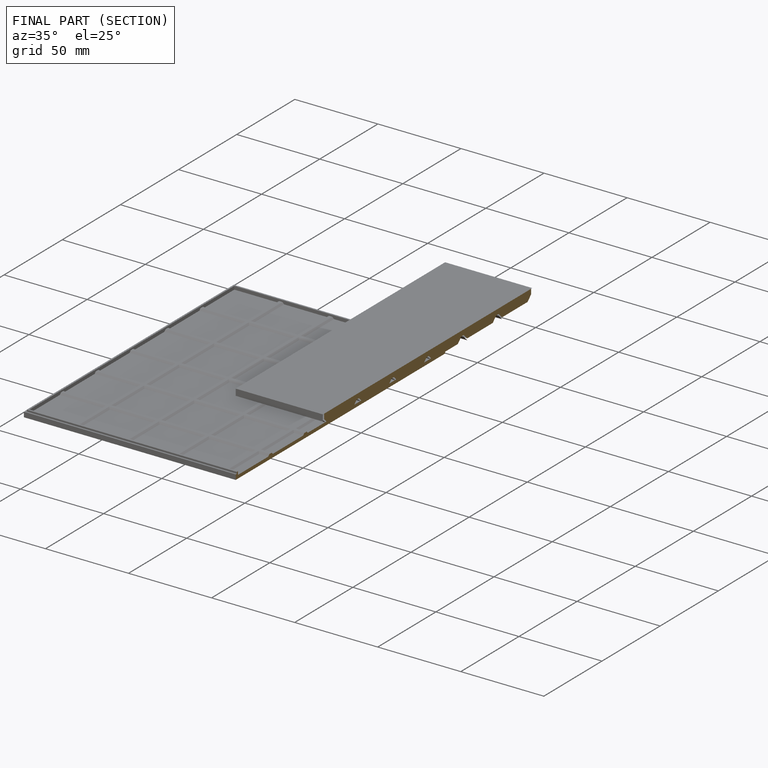
[diagram: finished part — half-section view (interior)]
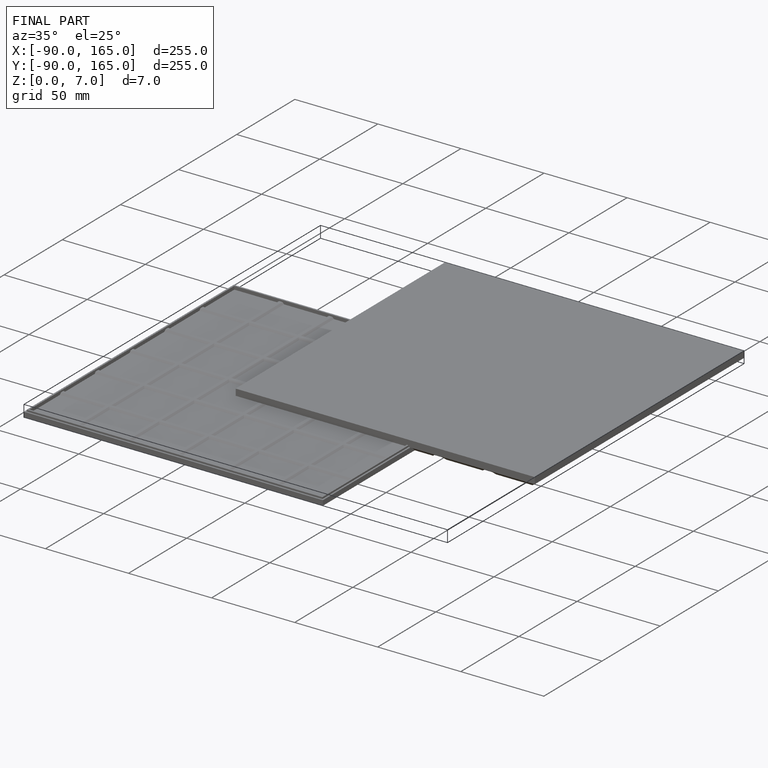
[diagram: finished part — iso view with bounding-box wireframe]
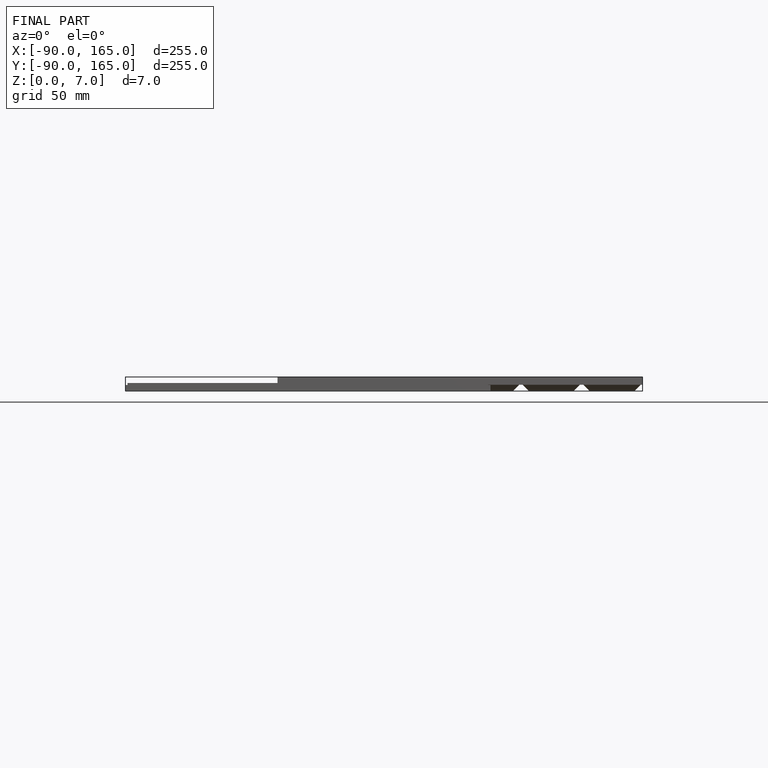
[diagram: finished part — front view with bounding-box wireframe]
